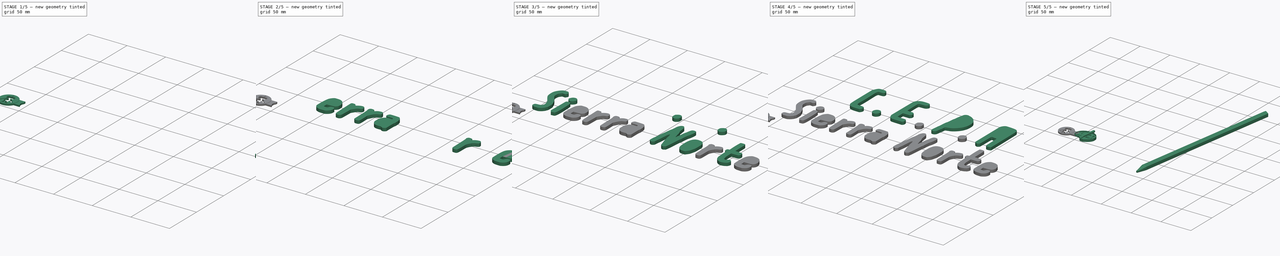
[diagram: build sequence overview — one tinted view per stage of 5, left to right]
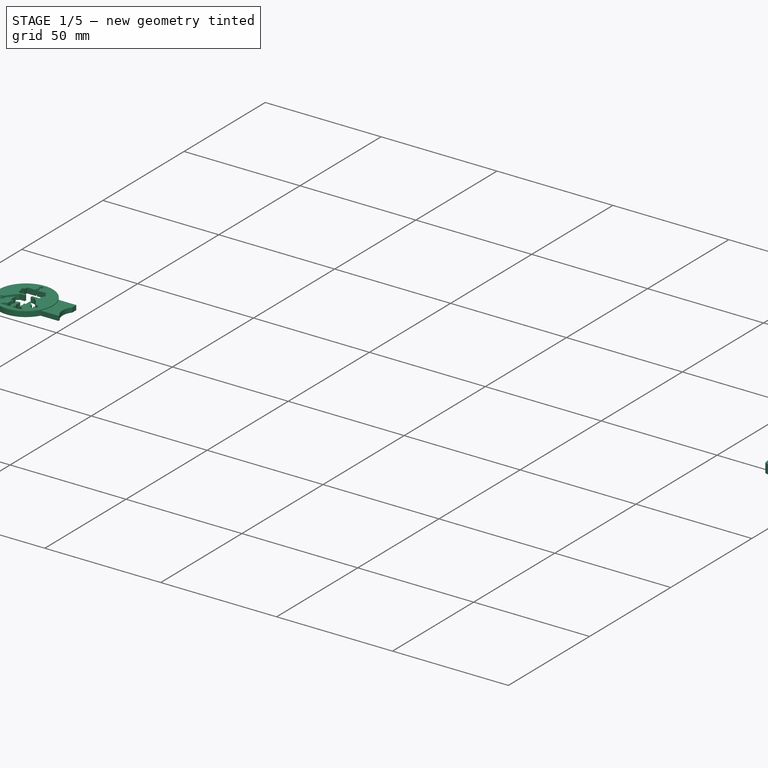
[diagram: stage 1 of 5 — iso view after this stage's code; geometry added in this stage tinted green]
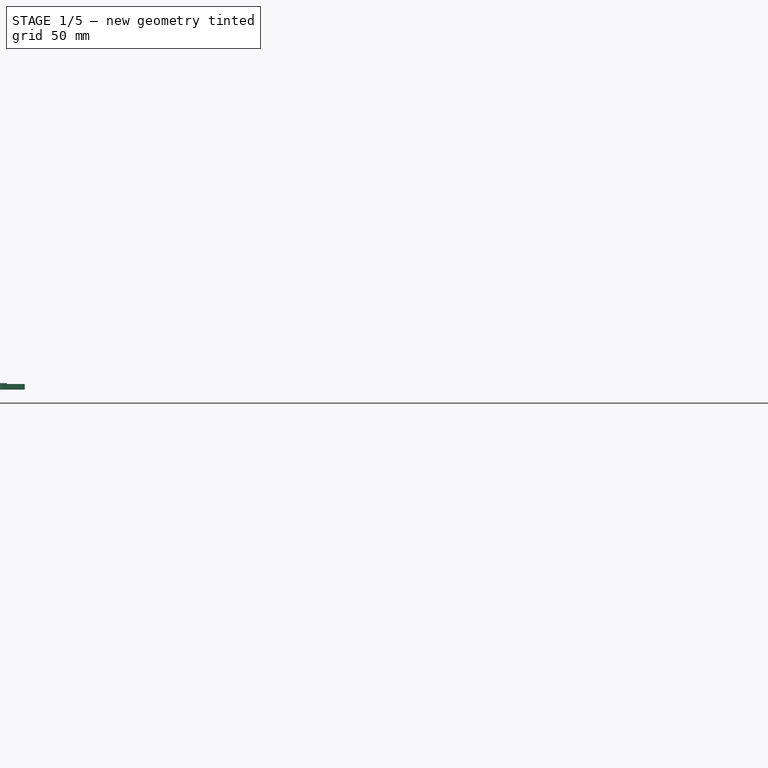
[diagram: stage 1 of 5 — front view after this stage's code; geometry added in this stage tinted green]
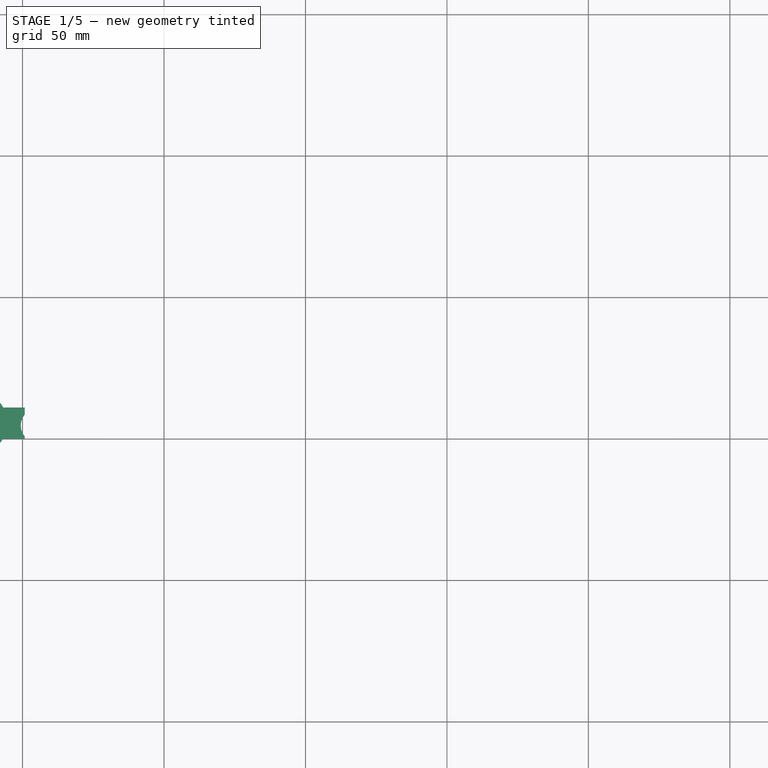
[diagram: stage 1 of 5 — top view after this stage's code; geometry added in this stage tinted green]
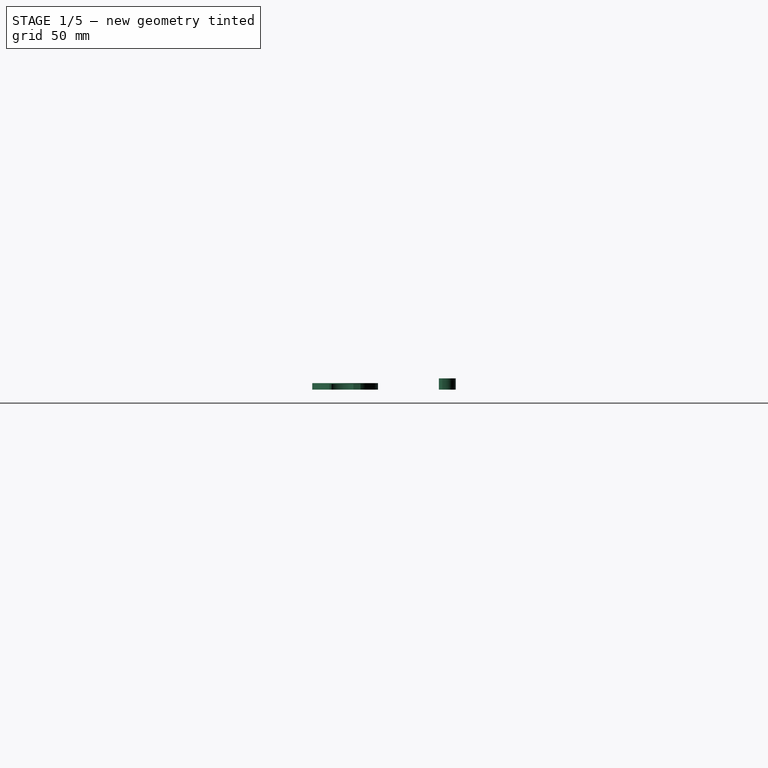
[diagram: stage 1 of 5 — right view after this stage's code; geometry added in this stage tinted green]
FCSTD DOCUMENT  (FreeCAD 0.17R13247 (Git))
Label: Llavero-CEPA-CarroCompra2
License: All rights reserved
LicenseURL: http://en.wikipedia.org/wiki/All_rights_reserved
objects: Part::Feature×43, Part::Extrusion×28, Sketcher::SketchObject×8, Part::MultiFuse×5, Part::Cut×3, Part::Loft×2, Part::Cylinder×2, Part::FeaturePython×1, Part::Box×1
note: 93 computed .brp shape members not serialized (recipe doc carries the construction recipe); baked Part::Feature solids carry a one-line shape summary decoded from their .brp

FEATURE [Part::Extrusion] Extrude026
  Base = -> Path025
  Dir = (0,0,4)
  DirMode = 0
  FaceMakerClass = Part::FaceMakerExtrusion
  LengthFwd = 0
  LengthRev = 0
  Solid = true
  Symmetric = false
FEATURE [Part::Cylinder] Cylinder  label="Moneda-euro"
  Angle = 360
  AttacherType = Attacher::AttachEngine3D
  Height = 2.3
  Placement = pos=(-17.1289,5.62216,0) rot=(0,0,1;0rad)
  Radius = 11.625
  expr: Radius = 23.25 / 2
FEATURE [Part::Box] Box  label="Union-llavero-moneda"
  AttacherType = Attacher::AttachEngine3D
  Height = 2
  Length = 8
  Placement = pos=(-7.21,0.06,0) rot=(0,0,1;0rad)
  Width = 11
FEATURE [Part::Cylinder] Cylinder001  label="Union-borrar"
  Angle = 360
  AttacherType = Attacher::AttachEngine3D
  Height = 4
  Placement = pos=(5.4,4.7,-0.5) rot=(0,0,1;0rad)
  Radius = 6
FEATURE [Part::Cut] Cut001  label="mango"
  Base = -> Box
  Refine = true
  Tool = -> Cylinder001
FEATURE [Part::MultiFuse] Fusion007  label="Moneda-con-mango"
  Refine = true
  Shapes = -> [Cylinder,Cut001]
FEATURE [Part::Feature] rect207
  shape: bbox 1.587 x 2.472 x 2e-07 mm, 1 faces, 0 solids (baked)
FEATURE [Part::Feature] path3343
  shape: bbox 2.75 x 2.617 x 2e-07 mm, 1 faces, 0 solids (baked)
FEATURE [Part::Feature] path3344
  shape: bbox 9.279 x 2.618 x 2e-07 mm, 1 faces, 0 solids (baked)
FEATURE [Part::Feature] rect208
  shape: bbox 2.771 x 4.897 x 2e-07 mm, 1 faces, 0 solids (baked)
FEATURE [Part::Feature] rect209
  shape: bbox 2.557 x 1.238 x 2e-07 mm, 1 faces, 0 solids (baked)
FEATURE [Part::Feature] rect210
  shape: bbox 8.479 x 4.361 x 2e-07 mm, 1 faces, 0 solids (baked)
FEATURE [Part::Feature] path3345
  shape: bbox 5.284 x 7.283 x 2e-07 mm, 1 faces, 0 solids (baked)
FEATURE [Part::Feature] path3346
  shape: bbox 5.03 x 7.349 x 2e-07 mm, 1 faces, 0 solids (baked)
FEATURE [Part::Feature] rect211
  shape: bbox 1.587 x 2.472 x 2e-07 mm, 1 faces, 0 solids (baked)
FEATURE [Part::Feature] path3347
  shape: bbox 3.477 x 3.869 x 2e-07 mm, 1 faces, 0 solids (baked)
FEATURE [Part::Feature] rect212
  shape: bbox 3.343 x 4.634 x 2e-07 mm, 1 faces, 0 solids (baked)
FEATURE [Part::Feature] path3348
  shape: bbox 3.467 x 3.86 x 2e-07 mm, 1 faces, 0 solids (baked)
FEATURE [Part::Feature] rect213
  shape: bbox 6.504 x 5.764 x 2e-07 mm, 1 faces, 0 solids (baked)
FEATURE [Part::Feature] path3349
  shape: bbox 4.051 x 2.14 x 2e-07 mm, 1 faces, 0 solids (baked)
FEATURE [Part::Feature] path3350
  shape: bbox 1.759 x 2.704 x 2e-07 mm, 1 faces, 0 solids (baked)
FEATURE [Part::Feature] path3351
  shape: bbox 4.245 x 2.135 x 2e-07 mm, 1 faces, 0 solids (baked)
FEATURE [Part::MultiFuse] Fusion008
  Refine = true
  Shapes = -> [path3347,rect207,path3343,path3344,rect208,rect209,rect210,path3345,path3346,rect211,rect212,path3348,rect213,path3349,path3350,path3351]
FEATURE [Part::Extrusion] Extrude030  label="Robot"
  Base = -> Fusion008
  Dir = (0,0,1)
  DirMode = 0
  FaceMakerClass = Part::FaceMakerBullseye
  LengthFwd = 5
  LengthRev = 0
  Placement = pos=(-25.8,16.2,-1.4) rot=(0,0,1;0rad)
  Solid = false
  Symmetric = false
FEATURE [Part::Cut] Cut002  label="Moneda-robot"
  Base = -> Fusion007
  Refine = true
  Tool = -> Extrude030
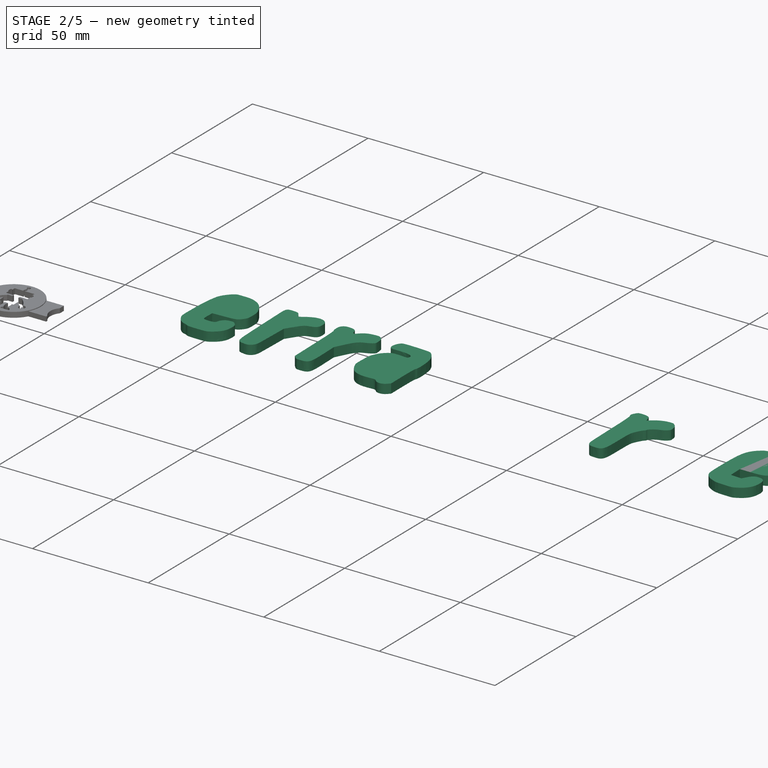
[diagram: stage 2 of 5 — iso view after this stage's code; geometry added in this stage tinted green]
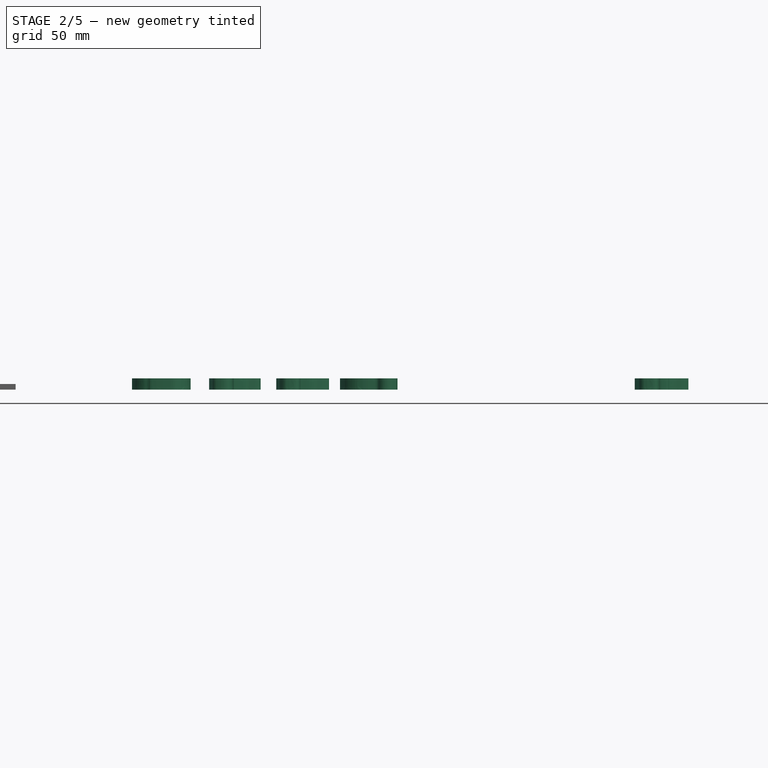
[diagram: stage 2 of 5 — front view after this stage's code; geometry added in this stage tinted green]
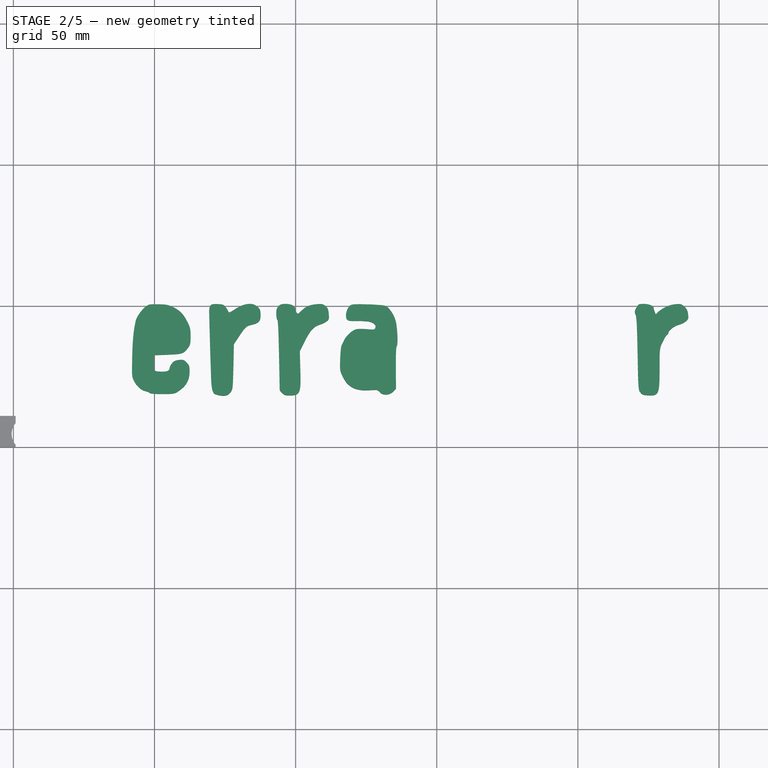
[diagram: stage 2 of 5 — top view after this stage's code; geometry added in this stage tinted green]
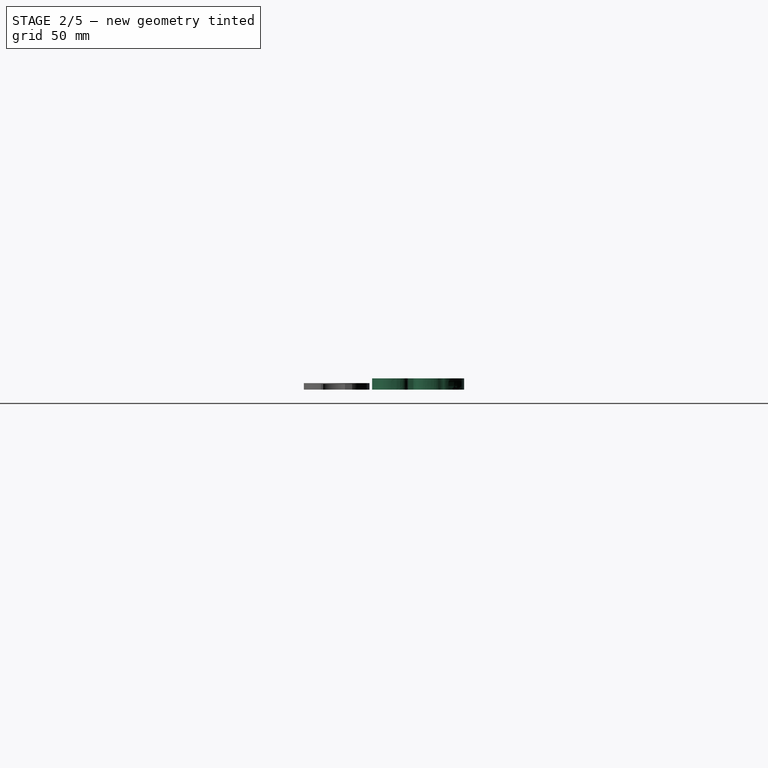
[diagram: stage 2 of 5 — right view after this stage's code; geometry added in this stage tinted green]
FEATURE [Part::Extrusion] Extrude018
  Base = -> Path017
  Dir = (0,0,4)
  DirMode = 0
  FaceMakerClass = Part::FaceMakerExtrusion
  LengthFwd = 0
  LengthRev = 0
  Solid = true
  Symmetric = false
FEATURE [Part::Extrusion] Extrude019
  Base = -> Path018
  Dir = (0,0,4)
  DirMode = 0
  FaceMakerClass = Part::FaceMakerExtrusion
  LengthFwd = 0
  LengthRev = 0
  Solid = true
  Symmetric = false
FEATURE [Part::Extrusion] Extrude020
  Base = -> Path019
  Dir = (0,0,4)
  DirMode = 0
  FaceMakerClass = Part::FaceMakerExtrusion
  LengthFwd = 0
  LengthRev = 0
  Solid = true
  Symmetric = false
FEATURE [Part::Extrusion] Extrude021
  Base = -> Path020
  Dir = (0,0,4)
  DirMode = 0
  FaceMakerClass = Part::FaceMakerExtrusion
  LengthFwd = 0
  LengthRev = 0
  Solid = true
  Symmetric = false
FEATURE [Part::Extrusion] Extrude022
  Base = -> Path021
  Dir = (0,0,4)
  DirMode = 0
  FaceMakerClass = Part::FaceMakerExtrusion
  LengthFwd = 0
  LengthRev = 0
  Solid = true
  Symmetric = false
FEATURE [Part::Extrusion] Extrude023
  Base = -> Path022
  Dir = (0,0,4)
  DirMode = 0
  FaceMakerClass = Part::FaceMakerExtrusion
  LengthFwd = 0
  LengthRev = 0
  Solid = true
  Symmetric = false
FEATURE [Part::Extrusion] Extrude024
  Base = -> Path023
  Dir = (0,0,4)
  DirMode = 0
  FaceMakerClass = Part::FaceMakerExtrusion
  LengthFwd = 0
  LengthRev = 0
  Solid = true
  Symmetric = false
FEATURE [Part::Extrusion] Extrude025
  Base = -> Path024
  Dir = (0,0,4)
  DirMode = 0
  FaceMakerClass = Part::FaceMakerExtrusion
  LengthFwd = 0
  LengthRev = 0
  Solid = true
  Symmetric = false
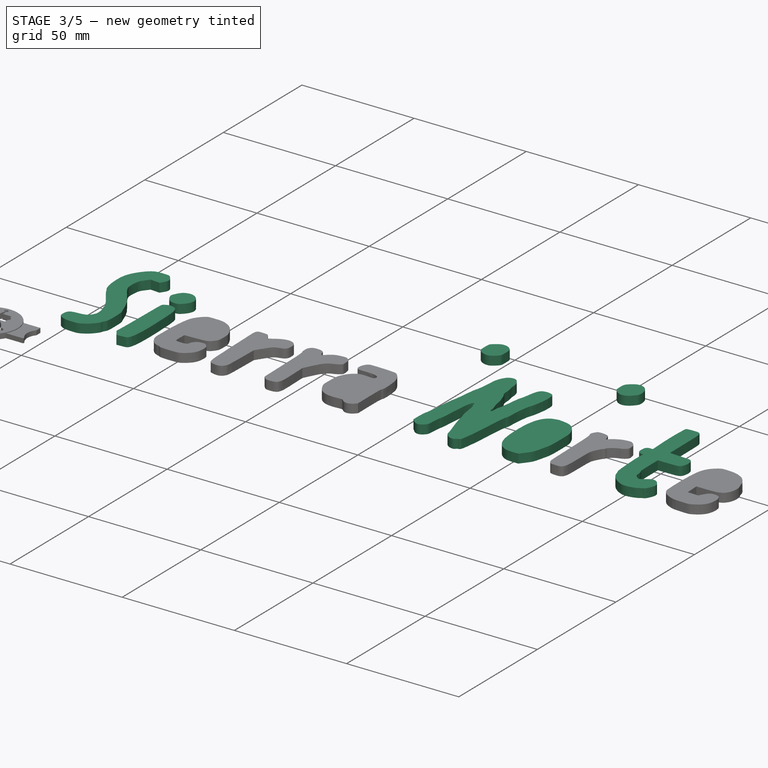
[diagram: stage 3 of 5 — iso view after this stage's code; geometry added in this stage tinted green]
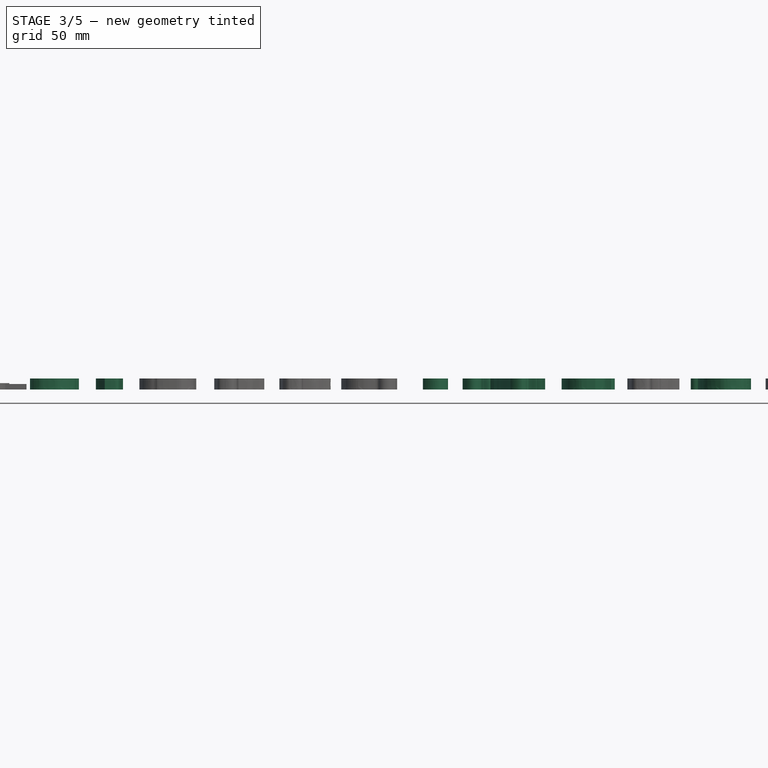
[diagram: stage 3 of 5 — front view after this stage's code; geometry added in this stage tinted green]
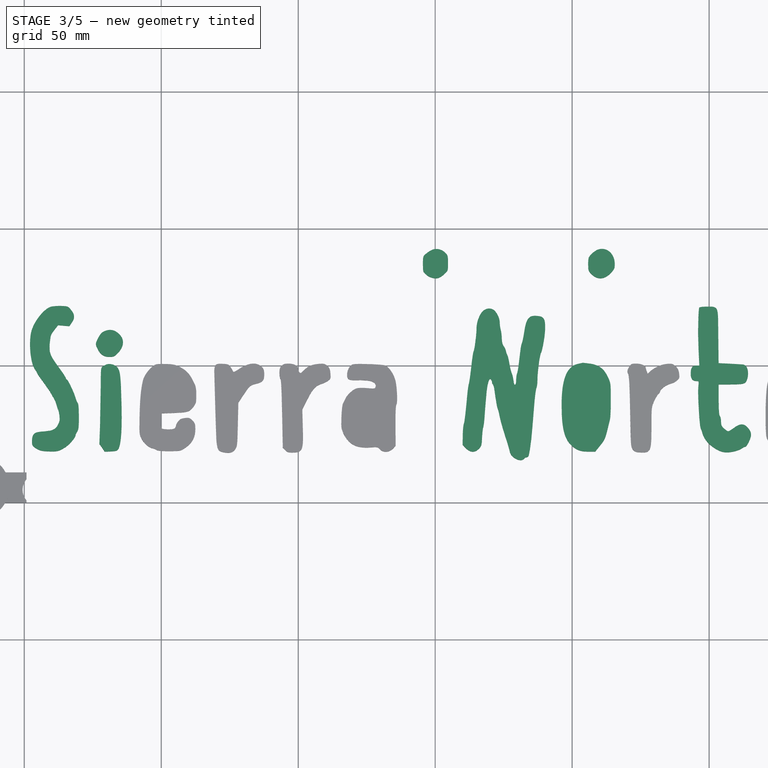
[diagram: stage 3 of 5 — top view after this stage's code; geometry added in this stage tinted green]
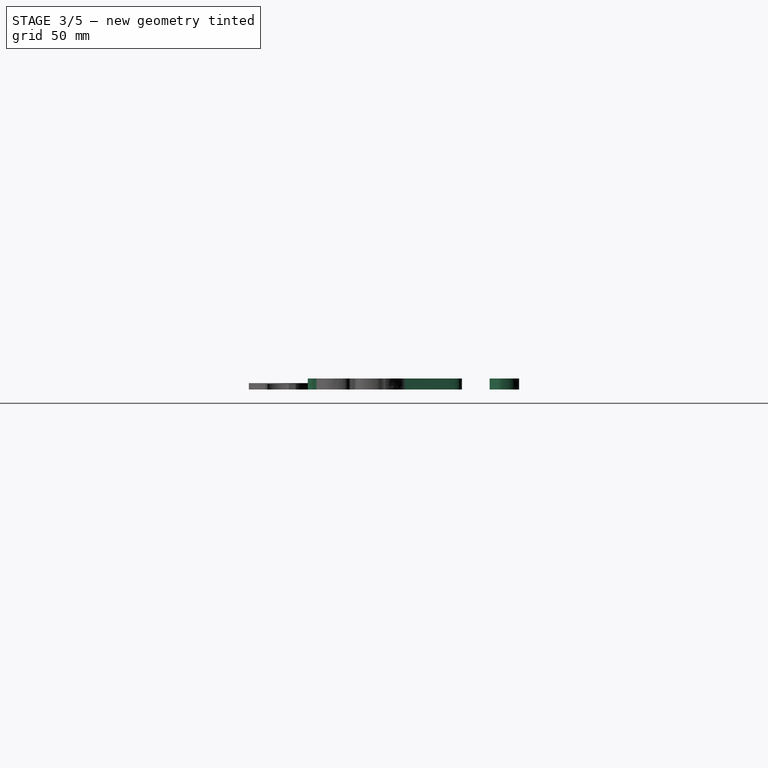
[diagram: stage 3 of 5 — right view after this stage's code; geometry added in this stage tinted green]
FEATURE [Part::Extrusion] Extrude009
  Base = -> Path008
  Dir = (0,0,4)
  DirMode = 0
  FaceMakerClass = Part::FaceMakerExtrusion
  LengthFwd = 0
  LengthRev = 0
  Solid = true
  Symmetric = false
FEATURE [Part::Extrusion] Extrude010
  Base = -> Path009
  Dir = (0,0,4)
  DirMode = 0
  FaceMakerClass = Part::FaceMakerExtrusion
  LengthFwd = 0
  LengthRev = 0
  Solid = true
  Symmetric = false
FEATURE [Part::Extrusion] Extrude011
  Base = -> Path010
  Dir = (0,0,4)
  DirMode = 0
  FaceMakerClass = Part::FaceMakerExtrusion
  LengthFwd = 0
  LengthRev = 0
  Solid = true
  Symmetric = false
FEATURE [Part::Extrusion] Extrude012
  Base = -> Path011
  Dir = (0,0,4)
  DirMode = 0
  FaceMakerClass = Part::FaceMakerExtrusion
  LengthFwd = 0
  LengthRev = 0
  Solid = true
  Symmetric = false
FEATURE [Part::Extrusion] Extrude013
  Base = -> Path012
  Dir = (0,0,4)
  DirMode = 0
  FaceMakerClass = Part::FaceMakerExtrusion
  LengthFwd = 0
  LengthRev = 0
  Solid = true
  Symmetric = false
FEATURE [Part::Extrusion] Extrude014
  Base = -> Path013
  Dir = (0,0,4)
  DirMode = 0
  FaceMakerClass = Part::FaceMakerExtrusion
  LengthFwd = 0
  LengthRev = 0
  Solid = true
  Symmetric = false
FEATURE [Part::Extrusion] Extrude015
  Base = -> Path014
  Dir = (0,0,4)
  DirMode = 0
  FaceMakerClass = Part::FaceMakerExtrusion
  LengthFwd = 0
  LengthRev = 0
  Solid = true
  Symmetric = false
FEATURE [Part::Extrusion] Extrude016
  Base = -> Path015
  Dir = (0,0,4)
  DirMode = 0
  FaceMakerClass = Part::FaceMakerExtrusion
  LengthFwd = 0
  LengthRev = 0
  Solid = true
  Symmetric = false
FEATURE [Part::Extrusion] Extrude017
  Base = -> Path016
  Dir = (0,0,4)
  DirMode = 0
  FaceMakerClass = Part::FaceMakerExtrusion
  LengthFwd = 0
  LengthRev = 0
  Solid = true
  Symmetric = false
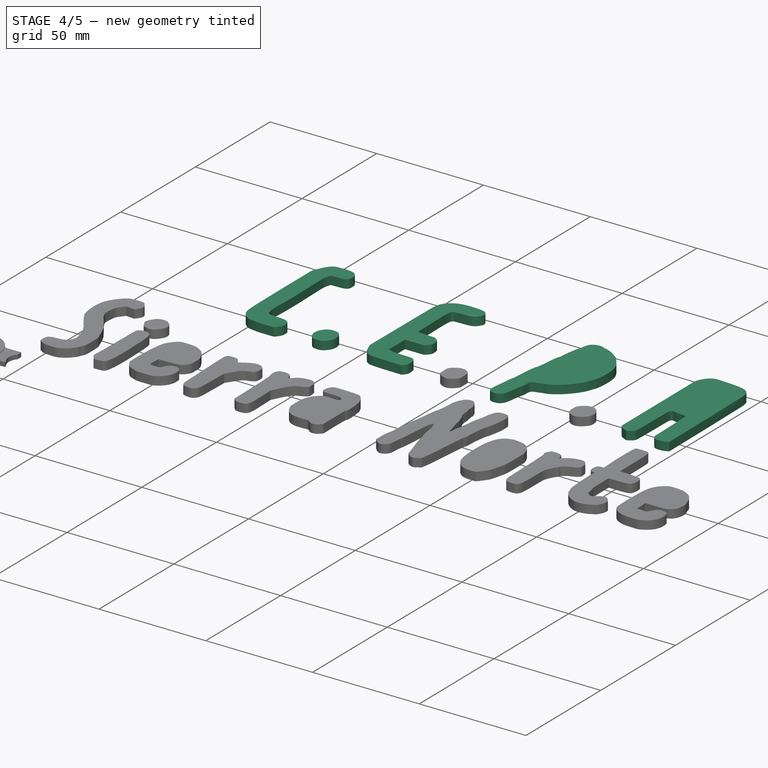
[diagram: stage 4 of 5 — iso view after this stage's code; geometry added in this stage tinted green]
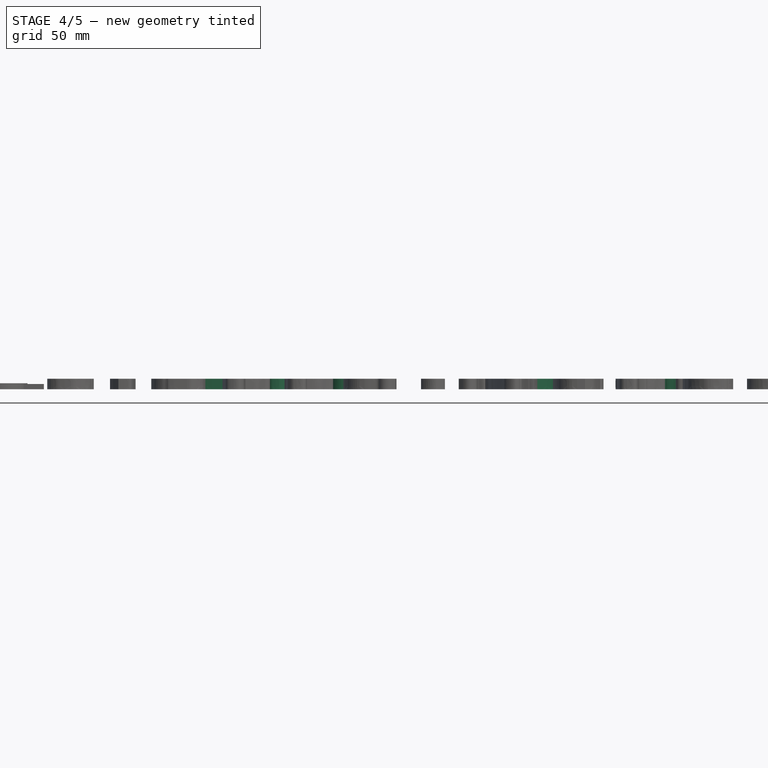
[diagram: stage 4 of 5 — front view after this stage's code; geometry added in this stage tinted green]
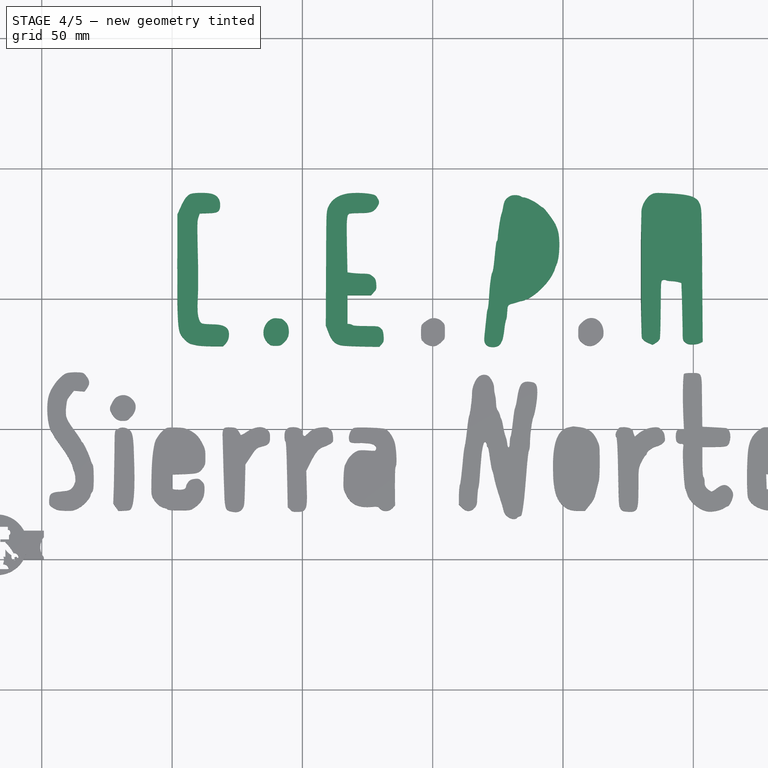
[diagram: stage 4 of 5 — top view after this stage's code; geometry added in this stage tinted green]
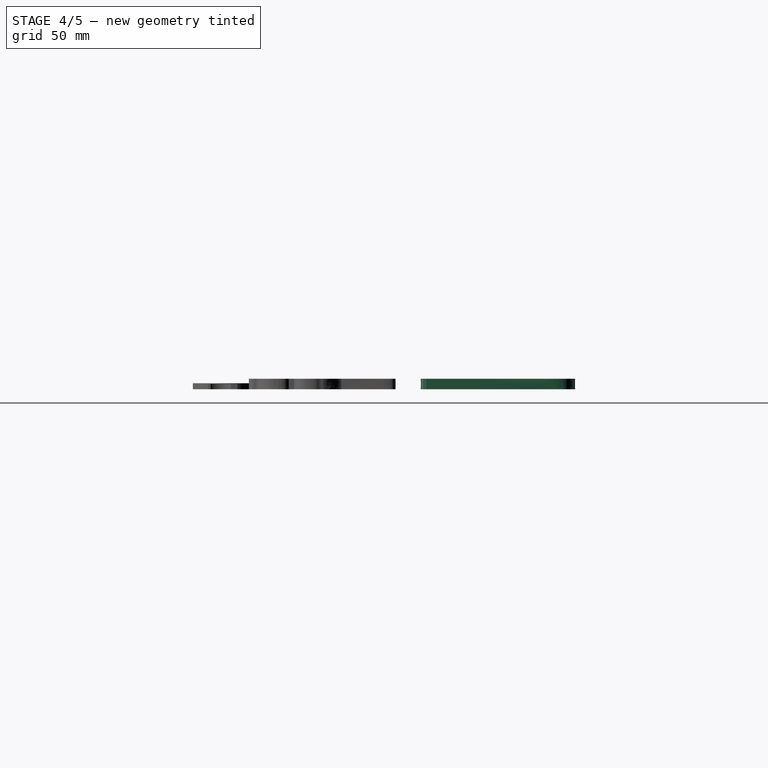
[diagram: stage 4 of 5 — right view after this stage's code; geometry added in this stage tinted green]
FEATURE [Part::Extrusion] Extrude002
  Base = -> Path001
  Dir = (0,0,4)
  DirMode = 0
  FaceMakerClass = Part::FaceMakerExtrusion
  LengthFwd = 0
  LengthRev = 0
  Solid = true
  Symmetric = false
FEATURE [Part::Extrusion] Extrude003
  Base = -> Path002
  Dir = (0,0,4)
  DirMode = 0
  FaceMakerClass = Part::FaceMakerExtrusion
  LengthFwd = 0
  LengthRev = 0
  Solid = true
  Symmetric = false
FEATURE [Part::Extrusion] Extrude004
  Base = -> Path003
  Dir = (0,0,4)
  DirMode = 0
  FaceMakerClass = Part::FaceMakerExtrusion
  LengthFwd = 0
  LengthRev = 0
  Solid = true
  Symmetric = false
FEATURE [Part::Extrusion] Extrude005
  Base = -> Path004
  Dir = (0,0,4)
  DirMode = 0
  FaceMakerClass = Part::FaceMakerExtrusion
  LengthFwd = 0
  LengthRev = 0
  Solid = true
  Symmetric = false
FEATURE [Part::Extrusion] Extrude006
  Base = -> Path005
  Dir = (0,0,4)
  DirMode = 0
  FaceMakerClass = Part::FaceMakerExtrusion
  LengthFwd = 0
  LengthRev = 0
  Solid = true
  Symmetric = false
FEATURE [Part::Extrusion] Extrude007
  Base = -> Path006
  Dir = (0,0,4)
  DirMode = 0
  FaceMakerClass = Part::FaceMakerExtrusion
  LengthFwd = 0
  LengthRev = 0
  Solid = true
  Symmetric = false
FEATURE [Part::Extrusion] Extrude008
  Base = -> Path007
  Dir = (0,0,4)
  DirMode = 0
  FaceMakerClass = Part::FaceMakerExtrusion
  LengthFwd = 0
  LengthRev = 0
  Solid = true
  Symmetric = false
FEATURE [Part::MultiFuse] Fusion  label="Texto-cepaSN"
  Refine = true
  Shapes = -> [Extrude002,Extrude012,Extrude006,Extrude008,Extrude026,Extrude025,Extrude010,Extrude023,Extrude017,Extrude003,Extrude018,Extrude015,Extrude013,Extrude009,Extrude024,Extrude020,Extrude016,Extrude007,Extrude022,Extrude005,Extrude021,Extrude011,Extrude004,Extrude014,Extrude019]
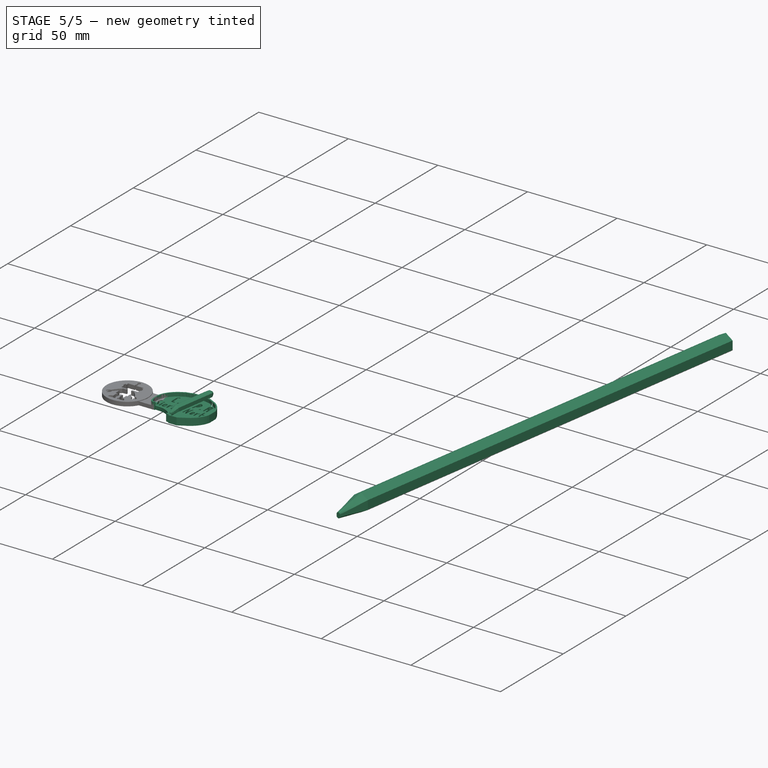
[diagram: stage 5 of 5 — iso view after this stage's code; geometry added in this stage tinted green]
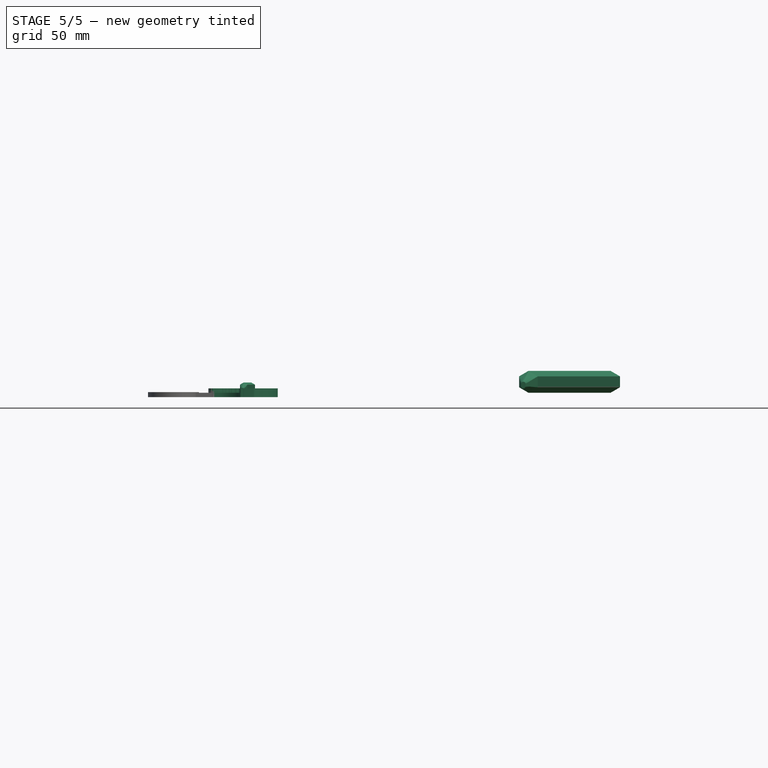
[diagram: stage 5 of 5 — front view after this stage's code; geometry added in this stage tinted green]
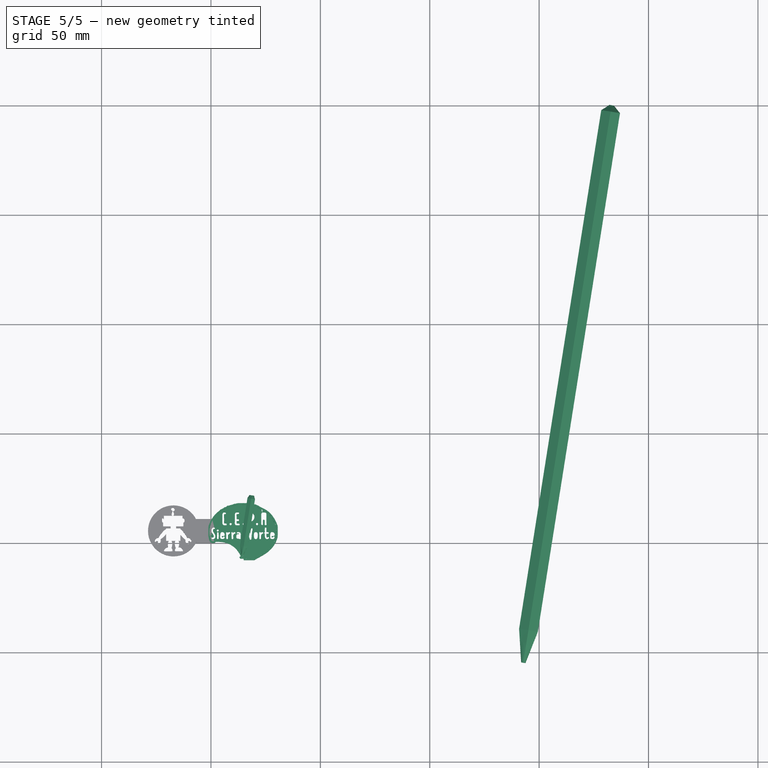
[diagram: stage 5 of 5 — top view after this stage's code; geometry added in this stage tinted green]
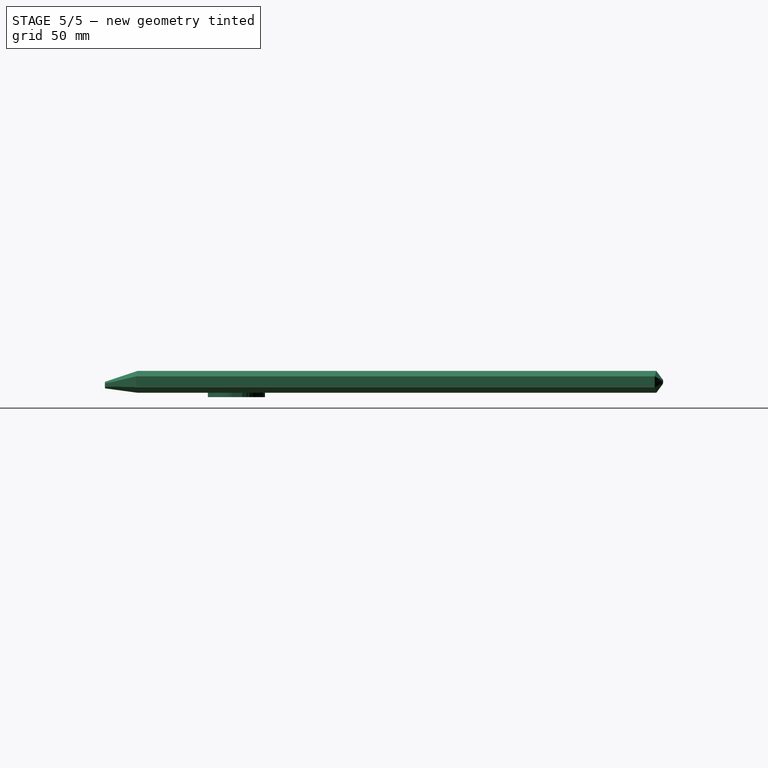
[diagram: stage 5 of 5 — right view after this stage's code; geometry added in this stage tinted green]
FEATURE [Part::Feature] Path  label="Vuelta"
  Placement = pos=(-12,-106,0) rot=(0,0,1;0rad)
  shape: bbox 317.5 x 261.2 x 2e-07 mm, 0 faces, 0 solids (baked)
FEATURE [Part::Feature] Path001  label="C"
  shape: bbox 20.33 x 59.06 x 2e-07 mm, 0 faces, 0 solids (baked)
FEATURE [Part::Feature] Path002  label="E"
  shape: bbox 22.33 x 59.16 x 2e-07 mm, 0 faces, 0 solids (baked)
FEATURE [Part::Feature] Path003  label="A"
  shape: bbox 23.92 x 58.38 x 2e-07 mm, 0 faces, 0 solids (baked)
FEATURE [Part::Feature] Path004  label="A_agujero"
  shape: bbox 8.29 x 18.38 x 2e-07 mm, 0 faces, 0 solids (baked)
FEATURE [Part::Feature] Path005  label="P"
  shape: bbox 29.25 x 58.62 x 2e-07 mm, 0 faces, 0 solids (baked)
FEATURE [Part::Feature] Path006  label="P_agujero"
  shape: bbox 10.76 x 24.13 x 2e-07 mm, 0 faces, 0 solids (baked)
FEATURE [Part::Feature] Path007  label="Punto1"
  shape: bbox 10.37 x 10.61 x 2e-07 mm, 0 faces, 0 solids (baked)
FEATURE [Part::Feature] Path008  label="Punto2"
  shape: bbox 9.172 x 10.98 x 2e-07 mm, 0 faces, 0 solids (baked)
FEATURE [Part::Feature] Path009  label="Punto3"
  shape: bbox 9.701 x 11.51 x 2e-07 mm, 0 faces, 0 solids (baked)
FEATURE [Part::Feature] Path010  label="S"
  shape: bbox 18.37 x 53.27 x 2e-07 mm, 0 faces, 0 solids (baked)
FEATURE [Part::Feature] Path011  label="t"
  shape: bbox 22.01 x 53.66 x 2e-07 mm, 0 faces, 0 solids (baked)
FEATURE [Part::Feature] Path012  label="N"
  shape: bbox 30.13 x 55.87 x 2e-07 mm, 0 faces, 0 solids (baked)
FEATURE [Part::Feature] Path013  label="i_puntito"
  shape: bbox 10.29 x 9.973 x 2e-07 mm, 0 faces, 0 solids (baked)
FEATURE [Part::Feature] Path014  label="o"
  shape: bbox 17.99 x 32.42 x 2e-07 mm, 0 faces, 0 solids (baked)
FEATURE [Part::Feature] Path015  label="o_agujero"
  shape: bbox 3.387 x 17.06 x 2e-07 mm, 0 faces, 0 solids (baked)
FEATURE [Part::Feature] Path016  label="i"
  shape: bbox 8.29 x 32.08 x 2e-07 mm, 0 faces, 0 solids (baked)
FEATURE [Part::Feature] Path017  label="e1"
  shape: bbox 20.85 x 31.86 x 2e-07 mm, 0 faces, 0 solids (baked)
FEATURE [Part::Feature] Path018  label="e1_agujero"
  shape: bbox 7.727 x 5.653 x 2e-07 mm, 0 faces, 0 solids (baked)
FEATURE [Part::Feature] Path019  label="r1"
  shape: bbox 18.27 x 32.99 x 2e-07 mm, 0 faces, 0 solids (baked)
FEATURE [Part::Feature] Path020  label="r2"
  shape: bbox 18.77 x 32.53 x 2e-07 mm, 0 faces, 0 solids (baked)
FEATURE [Part::Feature] Path021  label="a"
  shape: bbox 20.74 x 32.46 x 2e-07 mm, 0 faces, 0 solids (baked)
FEATURE [Part::Feature] Path022  label="a_agujero"
  shape: bbox 5.426 x 7.18 x 2e-07 mm, 0 faces, 0 solids (baked)
FEATURE [Part::Feature] Path023  label="r3"
  shape: bbox 19.2 x 32.74 x 2e-07 mm, 0 faces, 0 solids (baked)
FEATURE [Part::Feature] Path024  label="e2"
  shape: bbox 21.09 x 32.21 x 2e-07 mm, 0 faces, 0 solids (baked)
FEATURE [Part::Feature] Path025  label="e2_agujero"
  shape: bbox 6.421 x 6.257 x 2e-07 mm, 0 faces, 0 solids (baked)
FEATURE [Part::Feature] path3342  label="Base"
  Placement = pos=(-12,202,0) rot=(0,0,1;0rad)
  shape: bbox 305.9 x 247.7 x 2e-07 mm, 0 faces, 0 solids (baked)
FEATURE [Part::Extrusion] Extrude  label="Base_espesor"
  Base = -> path3342
  Dir = (0,0,2)
  DirMode = 0
  FaceMakerClass = Part::FaceMakerExtrusion
  LengthFwd = 0
  LengthRev = 0
  Solid = true
  Symmetric = false
FEATURE [Part::Extrusion] Extrude001  label="Vuelta_espesor"
  Base = -> Path
  Dir = (0,0,4)
  DirMode = 0
  FaceMakerClass = Part::FaceMakerExtrusion
  LengthFwd = 0
  LengthRev = 0
  Solid = true
  Symmetric = false
FEATURE [Part::Cut] Cut  label="Base_con_letras"
  Base = -> Extrude
  Refine = true
  Tool = -> Fusion
FEATURE [Sketcher::SketchObject] Sketch001  label="lapiz_base"
  MapMode = 5
  sketch-geometry (7):
    g0: LineSegment StartX=4.33013 StartY=-2.5 StartZ=0 EndX=4.33013 EndY=2.5 EndZ=0
    g1: LineSegment StartX=4.33013 StartY=2.5 StartZ=0 EndX=-1e-12 EndY=5 EndZ=0
    g2: LineSegment StartX=-1e-12 StartY=5 StartZ=0 EndX=-4.33013 EndY=2.5 EndZ=0
    g3: LineSegment StartX=-4.33013 StartY=2.5 StartZ=0 EndX=-4.33013 EndY=-2.5 EndZ=0
    g4: LineSegment StartX=-4.33013 StartY=-2.5 StartZ=0 EndX=-1e-12 EndY=-5 EndZ=0
    g5: LineSegment StartX=-1e-12 StartY=-5 StartZ=0 EndX=4.33013 EndY=-2.5 EndZ=0
    g6: Circle [constr] CenterX=0 CenterY=0 CenterZ=0 NormalX=0 NormalY=0 NormalZ=1 AngleXU=0 Radius=5
  constraints (16):
    c: Coincident(g0,g1)
    c: Coincident(g1,g2)
    c: Coincident(g2,g3)
    c: Coincident(g3,g4)
    c: Coincident(g4,g5)
    c: Coincident(g5,g0)
    c: Equal(g0, g1-g5) x5
    c: PointOnObject(g0,g6)
    c: PointOnObject(g1,g6)
    c: PointOnObject(g2,g6)
    c: PointOnObject(g3,g6)
    c: PointOnObject(g4,g6)
    c: PointOnObject(g5,g6)
    c: Coincident(g6,g-1)
    c: Vertical(g3)
    c: DistanceY(g4,g-1) = 5
FEATURE [Sketcher::SketchObject] Sketch002  label="lapiz_final"
  MapMode = 5
  Placement = pos=(0,0,240) rot=(0,0,1;0rad)
  sketch-geometry (7):
    g0: LineSegment StartX=4.33013 StartY=-2.5 StartZ=0 EndX=4.33013 EndY=2.5 EndZ=0
    g1: LineSegment StartX=4.33013 StartY=2.5 StartZ=0 EndX=-1e-12 EndY=5 EndZ=0
    g2: LineSegment StartX=-1e-12 StartY=5 StartZ=0 EndX=-4.33013 EndY=2.5 EndZ=0
    g3: LineSegment StartX=-4.33013 StartY=2.5 StartZ=0 EndX=-4.33013 EndY=-2.5 EndZ=0
    g4: LineSegment StartX=-4.33013 StartY=-2.5 StartZ=0 EndX=-1e-12 EndY=-5 EndZ=0
    g5: LineSegment StartX=-1e-12 StartY=-5 StartZ=0 EndX=4.33013 EndY=-2.5 EndZ=0
    g6: Circle [constr] CenterX=0 CenterY=0 CenterZ=0 NormalX=0 NormalY=0 NormalZ=1 AngleXU=0 Radius=5
  constraints (16):
    c: Coincident(g0,g1)
    c: Coincident(g1,g2)
    c: Coincident(g2,g3)
    c: Coincident(g3,g4)
    c: Coincident(g4,g5)
    c: Coincident(g5,g0)
    c: Equal(g0, g1-g5) x5
    c: PointOnObject(g0,g6)
    c: PointOnObject(g1,g6)
    c: PointOnObject(g2,g6)
    c: PointOnObject(g3,g6)
    c: PointOnObject(g4,g6)
    c: PointOnObject(g5,g6)
    c: Coincident(g6,g-1)
    c: Vertical(g3)
    c: DistanceY(g4,g-1) = 5
FEATURE [Sketcher::SketchObject] Sketch003  label="lapiz_goma"
  MapMode = 5
  Placement = pos=(0,0,243) rot=(0,0,1;0rad)
  sketch-geometry (1):
    g0: Circle CenterX=0 CenterY=0 CenterZ=0 NormalX=0 NormalY=0 NormalZ=1 AngleXU=0 Radius=1.0574
  constraints (1):
    c: Coincident(g0,g-1)
FEATURE [Sketcher::SketchObject] Sketch004  label="lapiz_punta"
  MapMode = 5
  Placement = pos=(0,2,-15) rot=(0,0,1;0rad)
  sketch-geometry (4):
    g0: ArcOfCircle CenterX=0 CenterY=0 CenterZ=0 NormalX=0 NormalY=0 NormalZ=1 AngleXU=0 Radius=1.0069 StartAngle=1.2e-11 EndAngle=3.14159
    g1: ArcOfCircle CenterX=0 CenterY=-1.05134 CenterZ=0 NormalX=0 NormalY=0 NormalZ=1 AngleXU=0 Radius=1.0069 StartAngle=3.14159 EndAngle=6.28319
    g2: LineSegment StartX=-1.0069 StartY=0 StartZ=0 EndX=-1.0069 EndY=-1.05134 EndZ=0
    g3: LineSegment StartX=1.0069 StartY=1.2e-11 StartZ=0 EndX=1.0069 EndY=-1.05134 EndZ=0
  constraints (7):
    c: Tangent(g0,g3) = 1.5708
    c: Tangent(g0,g2) = -1.5708
    c: Tangent(g2,g1) = -1.5708
    c: Tangent(g3,g1) = 1.5708
    c: Vertical(g2)
    c: Equal(g0,g1)
    c: Coincident(g0,g-1)
FEATURE [Part::Loft] Loft  label="Lapiz"
  Closed = false
  MaxDegree = 5
  Placement = pos=(145.114,-39.9111,7) rot=(-0.993863,0.078219,-0.078219;1.57695rad)
  Ruled = true
  Sections = -> [Sketch004,Sketch001,Sketch002,Sketch003]
  Solid = true
FEATURE [Part::MultiFuse] Fusion001  label="Base_completa"
  Refine = true
  Shapes = -> [Cut,Extrude001]
FEATURE [Sketcher::SketchObject] Sketch005  label="lapiz_base001"
  MapMode = 5
  Placement = pos=(0,0,-4) rot=(0,0,1;0rad)
  sketch-geometry (7):
    g0: LineSegment StartX=1.73205 StartY=-1 StartZ=0 EndX=1.73205 EndY=1 EndZ=0
    g1: LineSegment StartX=1.73205 StartY=1 StartZ=0 EndX=0 EndY=2 EndZ=0
    g2: LineSegment StartX=0 StartY=2 StartZ=0 EndX=-1.73205 EndY=1 EndZ=0
    g3: LineSegment StartX=-1.73205 StartY=1 StartZ=0 EndX=-1.73205 EndY=-1 EndZ=0
    g4: LineSegment StartX=-1.73205 StartY=-1 StartZ=0 EndX=0 EndY=-2 EndZ=0
    g5: LineSegment StartX=0 StartY=-2 StartZ=0 EndX=1.73205 EndY=-1 EndZ=0
    g6: Circle [constr] CenterX=0 CenterY=0 CenterZ=0 NormalX=0 NormalY=0 NormalZ=1 AngleXU=0 Radius=2
  constraints (16):
    c: Coincident(g0,g1)
    c: Coincident(g1,g2)
    c: Coincident(g2,g3)
    c: Coincident(g3,g4)
    c: Coincident(g4,g5)
    c: Coincident(g5,g0)
    c: Equal(g0, g1-g5) x5
    c: PointOnObject(g0,g6)
    c: PointOnObject(g1,g6)
    c: PointOnObject(g2,g6)
    c: PointOnObject(g3,g6)
    c: PointOnObject(g4,g6)
    c: PointOnObject(g5,g6)
    c: Coincident(g6,g-1)
    c: Vertical(g3)
    c: DistanceY(g4,g-1) = 2
FEATURE [Sketcher::SketchObject] Sketch006  label="lapiz_final001"
  MapMode = 5
  Placement = pos=(0,0,18) rot=(0,0,1;0rad)
  sketch-geometry (7):
    g0: LineSegment StartX=1.73205 StartY=-1 StartZ=0 EndX=1.73205 EndY=1 EndZ=0
    g1: LineSegment StartX=1.73205 StartY=1 StartZ=0 EndX=0 EndY=2 EndZ=0
    g2: LineSegment StartX=0 StartY=2 StartZ=0 EndX=-1.73205 EndY=1 EndZ=0
    g3: LineSegment StartX=-1.73205 StartY=1 StartZ=0 EndX=-1.73205 EndY=-1 EndZ=0
    g4: LineSegment StartX=-1.73205 StartY=-1 StartZ=0 EndX=0 EndY=-2 EndZ=0
    g5: LineSegment StartX=0 StartY=-2 StartZ=0 EndX=1.73205 EndY=-1 EndZ=0
    g6: Circle [constr] CenterX=0 CenterY=0 CenterZ=0 NormalX=0 NormalY=0 NormalZ=1 AngleXU=0 Radius=2
  constraints (16):
    c: Coincident(g0,g1)
    c: Coincident(g1,g2)
    c: Coincident(g2,g3)
    c: Coincident(g3,g4)
    c: Coincident(g4,g5)
    c: Coincident(g5,g0)
    c: Equal(g0, g1-g5) x5
    c: PointOnObject(g0,g6)
    c: PointOnObject(g1,g6)
    c: PointOnObject(g2,g6)
    c: PointOnObject(g3,g6)
    c: PointOnObject(g4,g6)
    c: PointOnObject(g5,g6)
    c: Coincident(g6,g-1)
    c: Vertical(g3)
    c: DistanceY(g4,g-1) = 2
FEATURE [Sketcher::SketchObject] Sketch007  label="lapiz_goma001"
  MapMode = 5
  Placement = pos=(0,0,19.5) rot=(0,0,1;0rad)
  sketch-geometry (1):
    g0: Circle CenterX=0 CenterY=0 CenterZ=0 NormalX=0 NormalY=0 NormalZ=1 AngleXU=0 Radius=1.0574
  constraints (1):
    c: Coincident(g0,g-1)
FEATURE [Sketcher::SketchObject] Sketch008  label="lapiz_punta001"
  MapMode = 5
  Placement = pos=(0,2,-8) rot=(0,0,1;0rad)
  sketch-geometry (4):
    g0: ArcOfCircle CenterX=0 CenterY=0 CenterZ=0 NormalX=0 NormalY=0 NormalZ=1 AngleXU=0 Radius=0.512223 StartAngle=0 EndAngle=3.14159
    g1: ArcOfCircle CenterX=0 CenterY=-1.05134 CenterZ=0 NormalX=0 NormalY=0 NormalZ=1 AngleXU=0 Radius=0.512223 StartAngle=3.14159 EndAngle=6.28319
    g2: LineSegment StartX=-0.512223 StartY=0 StartZ=0 EndX=-0.512223 EndY=-1.05134 EndZ=0
    g3: LineSegment StartX=0.512223 StartY=0 StartZ=0 EndX=0.512223 EndY=-1.05134 EndZ=0
  constraints (7):
    c: Tangent(g0,g3) = 1.5708
    c: Tangent(g0,g2) = -1.5708
    c: Tangent(g2,g1) = -1.5708
    c: Tangent(g3,g1) = 1.5708
    c: Vertical(g2)
    c: Equal(g0,g1)
    c: Coincident(g0,g-1)
FEATURE [Part::Loft] Loft001  label="Lapiz001"
  Closed = false
  MaxDegree = 5
  Placement = pos=(15.5814,2.52752,4.7) rot=(-0.993863,0.078219,-0.078219;1.57695rad)
  Ruled = true
  Sections = -> [Sketch008,Sketch005,Sketch006,Sketch007]
  Solid = true
FEATURE [Part::FeaturePython] Clone  label="Clone of Base_completa"  # Draft clone (typed FeaturePython)
  Objects = -> [Fusion001]
  Scale = (0.1,0.1,1)
FEATURE [Part::MultiFuse] Fusion002  label="Llavero_logo3D_small"
  Refine = true
  Shapes = -> [Loft001,Clone]
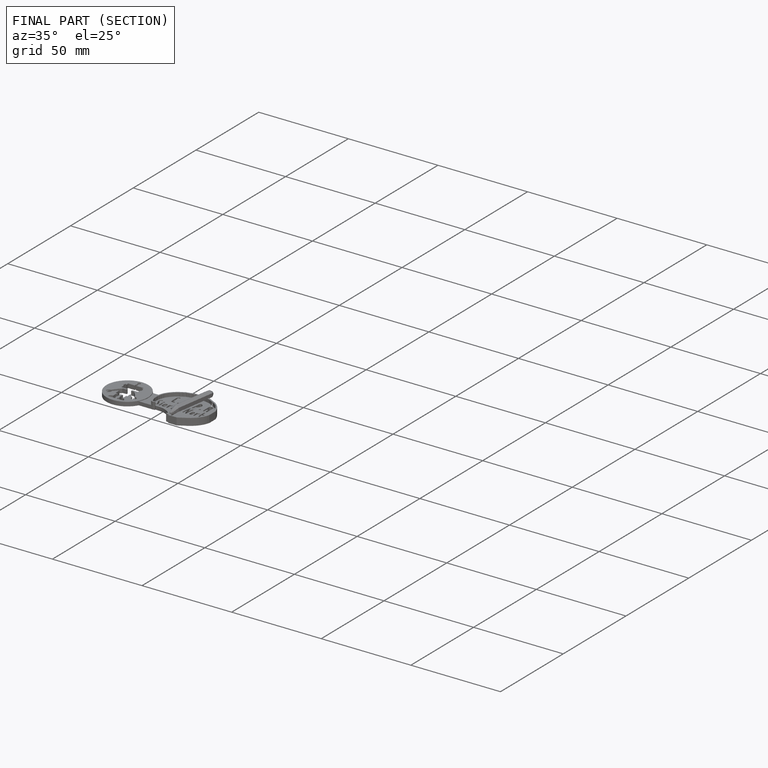
[diagram: finished part — half-section view (interior)]
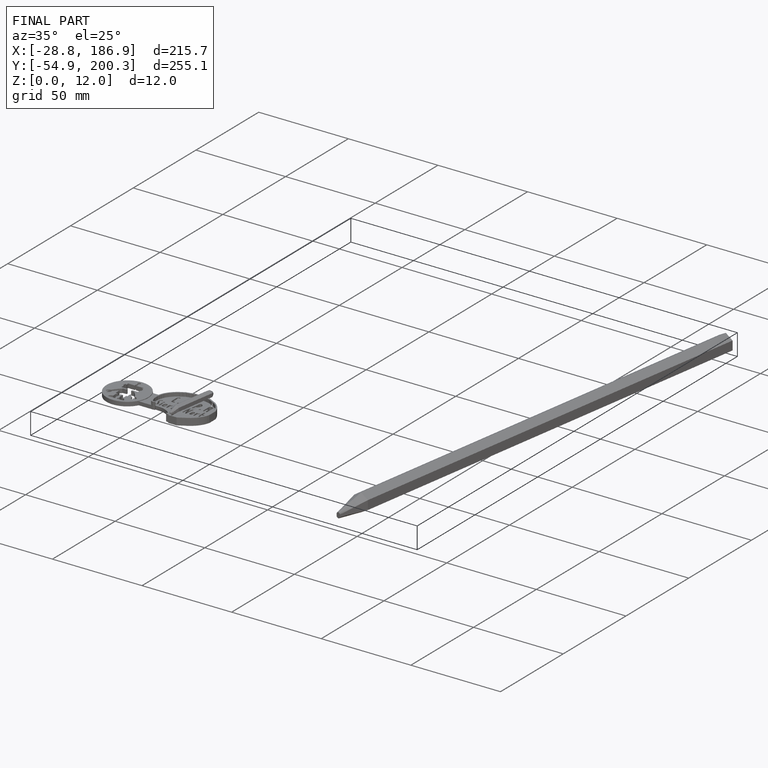
[diagram: finished part — iso view with bounding-box wireframe]
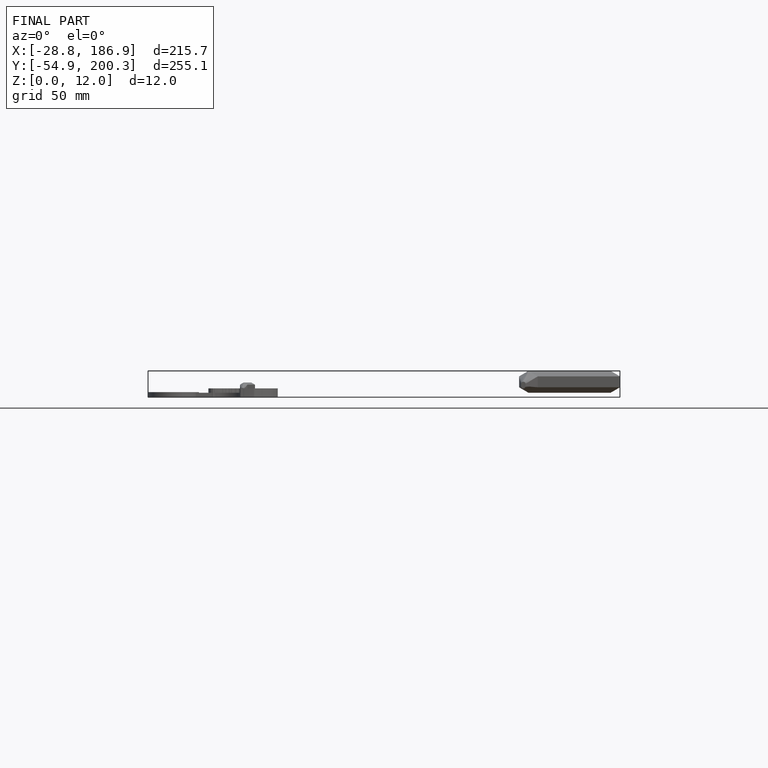
[diagram: finished part — front view with bounding-box wireframe]
